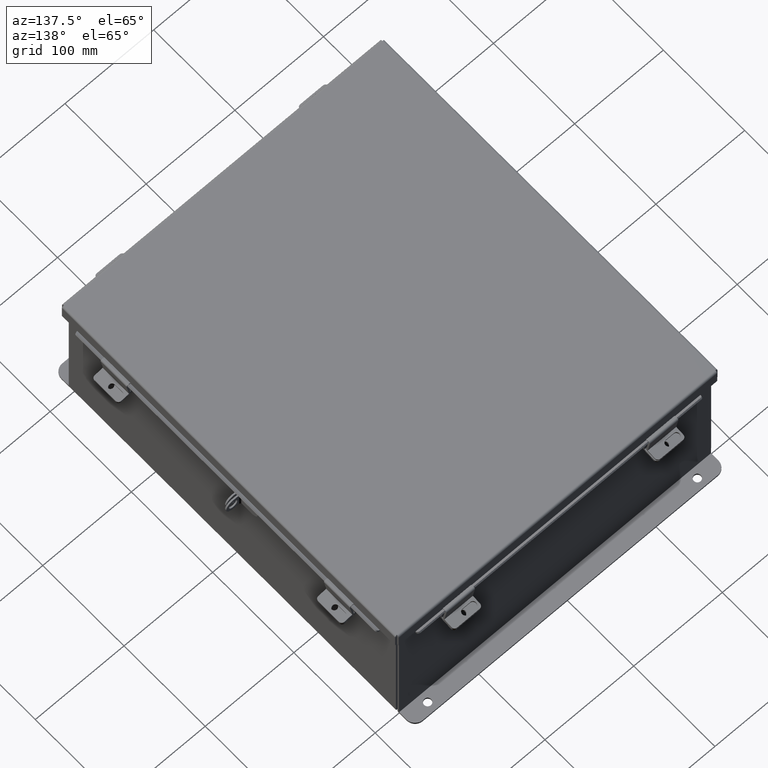
[diagram: clean part render]
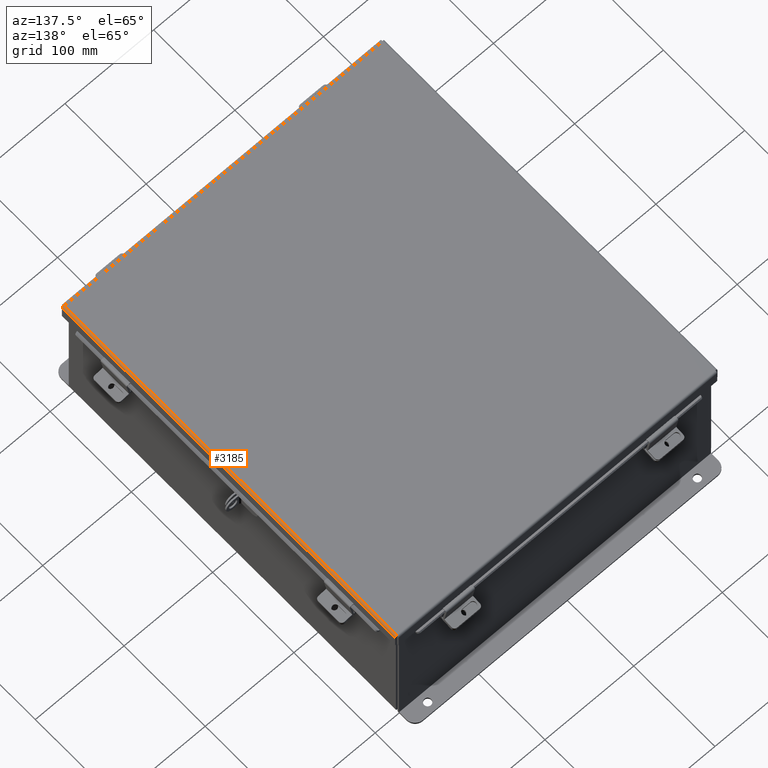
[diagram: same view with one face highlighted and labeled with its STEP entity id]
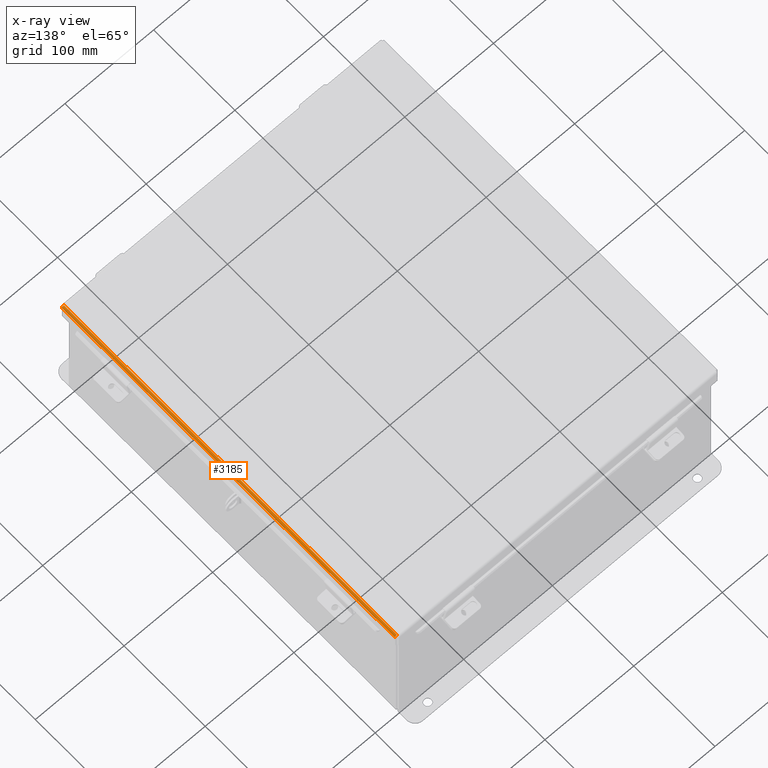
[diagram: x-ray of the same camera — body ghosted, the highlighted face saturated]
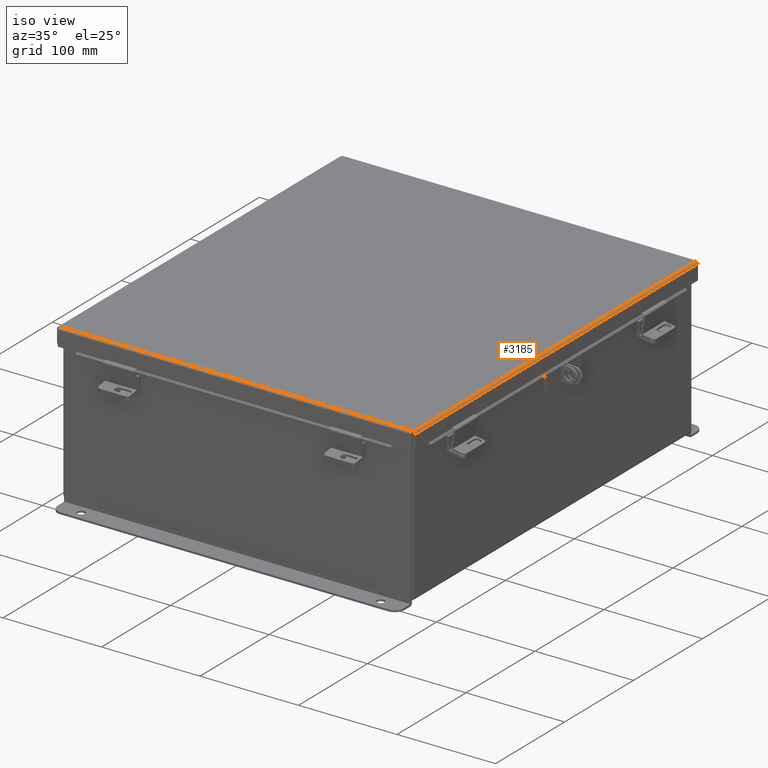
[diagram: same view with one face highlighted and labeled with its STEP entity id]
A machine part, auxiliary view. The second image highlights one B-rep face of the part: STEP entity #3185.
The next image is the same camera in x-ray: the body ghosted, the highlighted face saturated — about 0% of this face is hidden behind the body in this view.
A second angle (iso view) of the same face is appended — the face is thin or edge-on in the first view.
In plain terms, the highlighted cylindrical surface (edge-blend (fillet) strip) has radius 2.2276 mm, axis along (-0, -1, -0).
Its self-contained STEP definition (entity closure, byte-faithful):
#554 = VERTEX_POINT ( 'NONE', #11769 ) ;
#841 = VECTOR ( 'NONE', #5704, 39.37007874015748100 ) ;
#853 = CARTESIAN_POINT ( 'NONE',  ( -7.122445747341816800, 8.071020388411723100, -0.05713078207832072300 ) ) ;
#1283 = ORIENTED_EDGE ( 'NONE', *, *, #4809, .F. ) ;
#1314 = VERTEX_POINT ( 'NONE', #11620 ) ;
#1487 = EDGE_LOOP ( 'NONE', ( #5104, #1283, #14120, #9602 ) ) ;
#2146 = B_SPLINE_CURVE_WITH_KNOTS ( 'NONE', 3,
 ( #8864, #8176, #8120, #10246, #9425, #10467, #9950, #16041, #16791, #11821 ),
 .UNSPECIFIED., .F., .F.,
 ( 4, 2, 2, 2, 4 ),
 ( 0.0000000000000000000, 0.2500000000000000000, 0.5000000000000000000, 0.7500000000000000000, 1.000000000000000000 ),
 .UNSPECIFIED. ) ;
#2386 = CARTESIAN_POINT ( 'NONE',  ( -7.145181066258685700, 8.072502621458756500, -0.03116738457852789200 ) ) ;
#3185 = ADVANCED_FACE ( 'NONE', ( #19428 ), #18978, .T. ) ;
#3942 = CARTESIAN_POINT ( 'NONE',  ( -7.156250000000016900, 8.073984854505790000, 0.001520096845007619500 ) ) ;
#4809 = EDGE_CURVE ( 'NONE', #1314, #10613, #2146, .T. ) ;
#5104 = ORIENTED_EDGE ( 'NONE', *, *, #5990, .F. ) ;
#5634 = CARTESIAN_POINT ( 'NONE',  ( -7.156250000000016900, 8.156250000000000000, 0.01300000000000010700 ) ) ;
#5704 = DIRECTION ( 'NONE',  ( 3.158679887152019100E-030, 1.000000000000000000, -8.208677865575832000E-017 ) ) ;
#5990 = EDGE_CURVE ( 'NONE', #10613, #7479, #17321, .T. ) ;
#6534 = CARTESIAN_POINT ( 'NONE',  ( -7.068550000000017000, -8.074478932188133800, -0.07469999999999907300 ) ) ;
#7479 = VERTEX_POINT ( 'NONE', #12388 ) ;
#8081 = CARTESIAN_POINT ( 'NONE',  ( -7.068550000000017000, -8.068549999999998300, -0.07469999999999907300 ) ) ;
#8120 = CARTESIAN_POINT ( 'NONE',  ( -7.153967403743829200, -8.073490776823444300, -0.009955289458308697400 ) ) ;
#8176 = CARTESIAN_POINT ( 'NONE',  ( -7.156250000000017800, -8.073984854505788200, 0.001520096845007387100 ) ) ;
#8490 = CARTESIAN_POINT ( 'NONE',  ( -7.080029903155010000, 8.069044077682344000, -0.07470000000000053000 ) ) ;
#8864 = CARTESIAN_POINT ( 'NONE',  ( -7.156250000000016900, -8.074478932188133800, 0.01300000000000120000 ) ) ;
#9425 = CARTESIAN_POINT ( 'NONE',  ( -7.138680782078338000, -8.072008543776410900, -0.04089574734179962000 ) ) ;
#9602 = ORIENTED_EDGE ( 'NONE', *, *, #20051, .F. ) ;
#9950 = CARTESIAN_POINT ( 'NONE',  ( -7.112717384578543200, -8.070526310729377400, -0.06363106625866775400 ) ) ;
#10074 = CARTESIAN_POINT ( 'NONE',  ( -7.112717384578542300, 8.070526310729375700, -0.06363106625866880900 ) ) ;
#10246 = CARTESIAN_POINT ( 'NONE',  ( -7.145181066258683000, -8.072502621458753000, -0.03116738457852753800 ) ) ;
#10455 = DIRECTION ( 'NONE',  ( -3.158679887152019100E-030, -1.000000000000000000, 8.208677865575832000E-017 ) ) ;
#10467 = CARTESIAN_POINT ( 'NONE',  ( -7.122445747341817700, -8.071020388411721300, -0.05713078207831982100 ) ) ;
#10613 = VERTEX_POINT ( 'NONE', #8081 ) ;
#10701 = VECTOR ( 'NONE', #14970, 39.37007874015748100 ) ;
#11620 = CARTESIAN_POINT ( 'NONE',  ( -7.156250000000016900, -8.074478932188133800, 0.01300000000000120000 ) ) ;
#11633 = AXIS2_PLACEMENT_3D ( 'NONE', #15423, #10455, #15519 ) ;
#11642 = CARTESIAN_POINT ( 'NONE',  ( -7.138680782078336200, 8.072008543776409100, -0.04089574734180016800 ) ) ;
#11769 = CARTESIAN_POINT ( 'NONE',  ( -7.156250000000016900, 8.074478932188133800, 0.01300000000000010700 ) ) ;
#11821 = CARTESIAN_POINT ( 'NONE',  ( -7.068550000000017000, -8.068549999999998300, -0.07469999999999907300 ) ) ;
#12129 = B_SPLINE_CURVE_WITH_KNOTS ( 'NONE', 3,
 ( #17843, #8490, #19430, #10074, #853, #11642, #2386, #13240, #3942, #14805 ),
 .UNSPECIFIED., .F., .F.,
 ( 4, 2, 2, 2, 4 ),
 ( 0.0000000000000000000, 0.2500000000000000000, 0.5000000000000000000, 0.7500000000000000000, 1.000000000000000000 ),
 .UNSPECIFIED. ) ;
#12388 = CARTESIAN_POINT ( 'NONE',  ( -7.068550000000017000, 8.068550000000000100, -0.07470000000000015500 ) ) ;
#13240 = CARTESIAN_POINT ( 'NONE',  ( -7.153967403743831000, 8.073490776823446100, -0.009955289458308659200 ) ) ;
#14120 = ORIENTED_EDGE ( 'NONE', *, *, #19469, .T. ) ;
#14805 = CARTESIAN_POINT ( 'NONE',  ( -7.156250000000016900, 8.074478932188133800, 0.01300000000000010700 ) ) ;
#14970 = DIRECTION ( 'NONE',  ( 3.589451151544839600E-030, 1.000000000000000000, -6.698784352278370200E-017 ) ) ;
#15423 = CARTESIAN_POINT ( 'NONE',  ( -7.068550000000017000, -8.074478932188133800, 0.01300000000000120000 ) ) ;
#15519 = DIRECTION ( 'NONE',  ( -1.000000000000000000, 0.0000000000000000000, -3.577373637655407700E-015 ) ) ;
#16041 = CARTESIAN_POINT ( 'NONE',  ( -7.091505289458325500, -8.069538155364687900, -0.07241740374381051800 ) ) ;
#16791 = CARTESIAN_POINT ( 'NONE',  ( -7.080029903155010000, -8.069044077682342200, -0.07469999999999921100 ) ) ;
#17321 = LINE ( 'NONE', #6534, #841 ) ;
#17843 = CARTESIAN_POINT ( 'NONE',  ( -7.068550000000017000, 8.068550000000000100, -0.07470000000000015500 ) ) ;
#18978 = CYLINDRICAL_SURFACE ( 'NONE', #11633, 0.08770000000000026400 ) ;
#19041 = LINE ( 'NONE', #5634, #10701 ) ;
#19428 = FACE_OUTER_BOUND ( 'NONE', #1487, .T. ) ;
#19430 = CARTESIAN_POINT ( 'NONE',  ( -7.091505289458328100, 8.069538155364691400, -0.07241740374381179500 ) ) ;
#19469 = EDGE_CURVE ( 'NONE', #1314, #554, #19041, .T. ) ;
#20051 = EDGE_CURVE ( 'NONE', #7479, #554, #12129, .T. ) ;